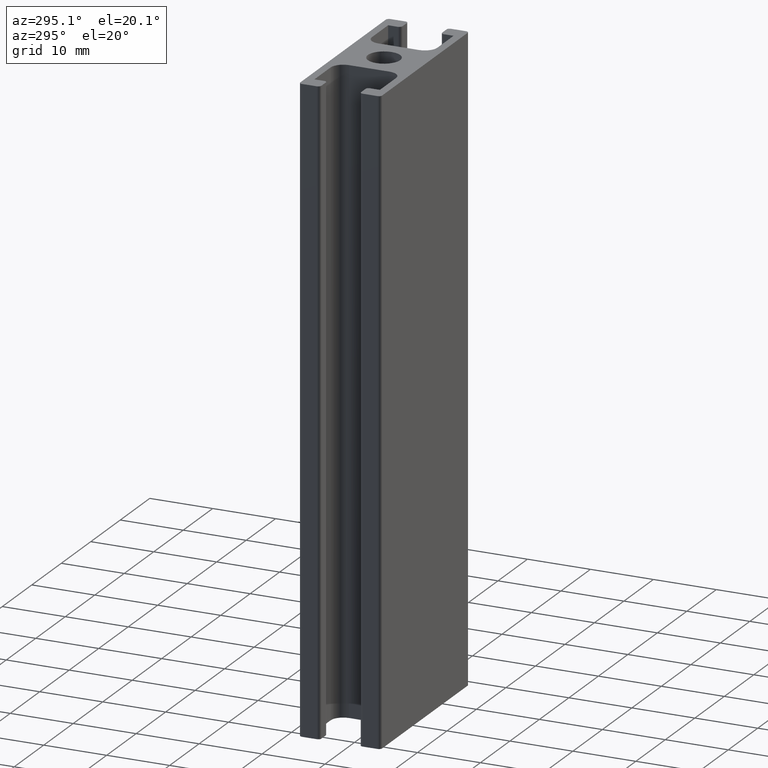
[diagram: clean part render]
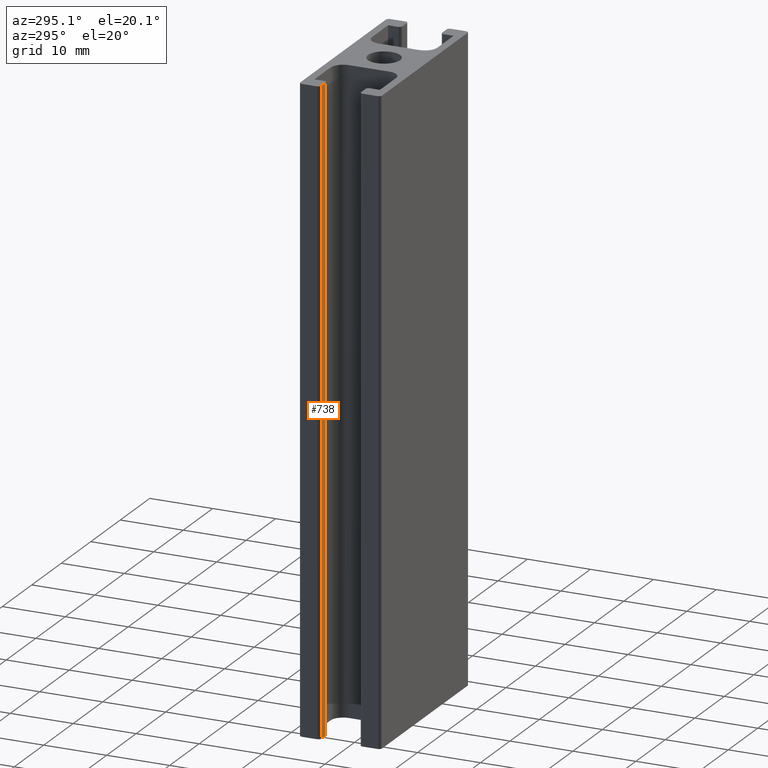
[diagram: same view with one face highlighted and labeled with its STEP entity id]
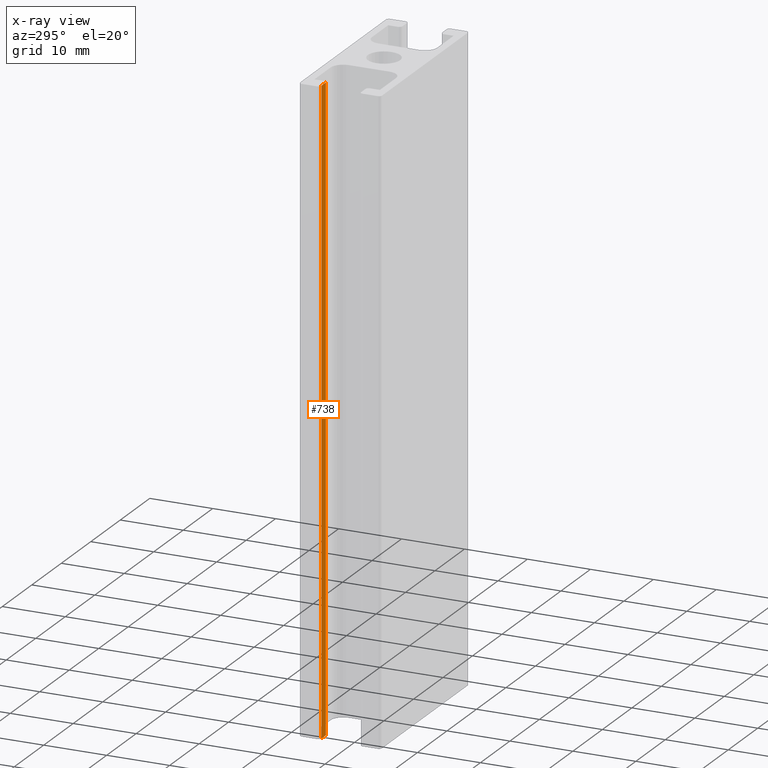
[diagram: x-ray of the same camera — body ghosted, the highlighted face saturated]
A machine part, auxiliary view. The second image highlights one B-rep face of the part: STEP entity #738.
The next image is the same camera in x-ray: the body ghosted, the highlighted face saturated — about 0% of this face is hidden behind the body in this view.
In plain terms, the highlighted planar face has unit normal (0, 1, 0).
Its self-contained STEP definition (entity closure, byte-faithful):
#19=PLANE('',#791);
#55=LINE('',#1131,#131);
#56=LINE('',#1134,#132);
#57=LINE('',#1136,#133);
#58=LINE('',#1137,#134);
#131=VECTOR('',#906,100.);
#132=VECTOR('',#909,1.5);
#133=VECTOR('',#910,1.5);
#134=VECTOR('',#911,100.);
#202=FACE_OUTER_BOUND('',#242,.T.);
#242=EDGE_LOOP('',(#529,#530,#531,#532));
#328=VERTEX_POINT('',#1125);
#330=VERTEX_POINT('',#1129);
#331=VERTEX_POINT('',#1133);
#332=VERTEX_POINT('',#1135);
#411=EDGE_CURVE('',#330,#328,#55,.T.);
#412=EDGE_CURVE('',#328,#331,#56,.T.);
#413=EDGE_CURVE('',#332,#330,#57,.T.);
#414=EDGE_CURVE('',#332,#331,#58,.T.);
#529=ORIENTED_EDGE('',*,*,#412,.F.);
#530=ORIENTED_EDGE('',*,*,#411,.F.);
#531=ORIENTED_EDGE('',*,*,#413,.F.);
#532=ORIENTED_EDGE('',*,*,#414,.T.);
#738=ADVANCED_FACE('',(#202),#19,.F.);
#791=AXIS2_PLACEMENT_3D('',#1132,#907,#908);
#906=DIRECTION('',(0.,0.,1.));
#907=DIRECTION('center_axis',(0.,1.,0.));
#908=DIRECTION('ref_axis',(0.,0.,1.));
#909=DIRECTION('',(1.,0.,0.));
#910=DIRECTION('',(-1.,0.,0.));
#911=DIRECTION('',(0.,0.,1.));
#1125=CARTESIAN_POINT('',(-14.5,3.15,100.));
#1129=CARTESIAN_POINT('',(-14.5,3.15,0.));
#1131=CARTESIAN_POINT('',(-14.5,3.15,0.));
#1132=CARTESIAN_POINT('Origin',(-14.5,3.15,0.));
#1133=CARTESIAN_POINT('',(-13.,3.15,100.));
#1134=CARTESIAN_POINT('',(-7.25,3.15,100.));
#1135=CARTESIAN_POINT('',(-13.,3.15,0.));
#1136=CARTESIAN_POINT('',(-7.25,3.15,0.));
#1137=CARTESIAN_POINT('',(-13.,3.15,0.));